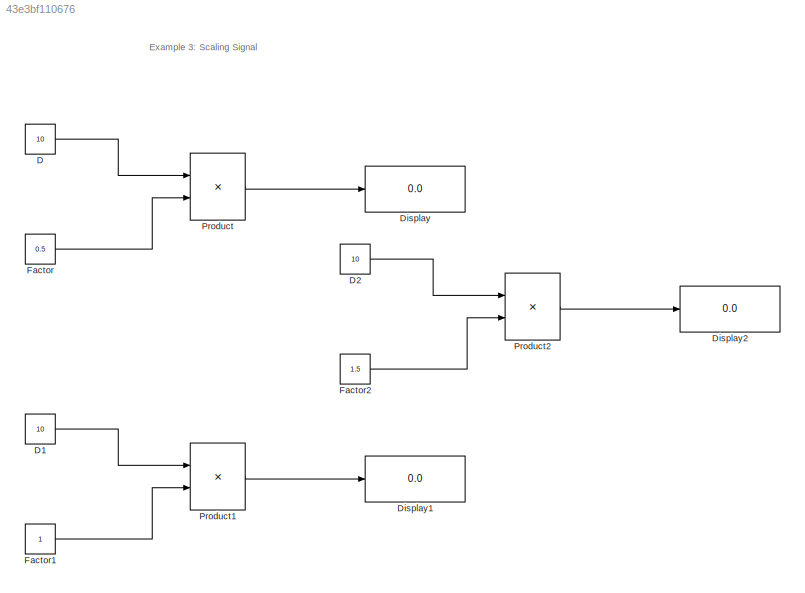
MODEL slx_43e3bf110676
KIND model
CONFIG AbsTol = auto
CONFIG EnableMultiTasking = off
CONFIG FixedStep = auto
CONFIG MaxStep = auto
CONFIG MinStep = auto
CONFIG RelTol = 1e-3
CONFIG SampleTimeConstraint = Unconstrained
CONFIG SolverName = VariableStepAuto
CONFIG StartTime = 0.0
CONFIG StopTime = 10.0
BLOCK [Constant] D
  Value = 10
BLOCK [Constant] D1
  Value = 10
BLOCK [Constant] D2
  Value = 10
BLOCK [Display] Display
  Decimation = 1
  Ports = [1]
BLOCK [Display] Display1
  Decimation = 1
  Ports = [1]
BLOCK [Display] Display2
  Decimation = 1
  Ports = [1]
BLOCK [Constant] Factor
  Value = 0.5
BLOCK [Constant] Factor1
BLOCK [Constant] Factor2
  Value = 1.5
BLOCK [Product] Product
  Ports = [2, 1]
BLOCK [Product] Product1
  Ports = [2, 1]
BLOCK [Product] Product2
  Ports = [2, 1]
ANNOTATION (root): Example 3: Scaling Signal
LINE D1:1 -> Product1:1
LINE D2:1 -> Product2:1
LINE D:1 -> Product:1
LINE Factor1:1 -> Product1:2
LINE Factor2:1 -> Product2:2
LINE Factor:1 -> Product:2
LINE Product1:1 -> Display1:1
LINE Product2:1 -> Display2:1
LINE Product:1 -> Display:1
